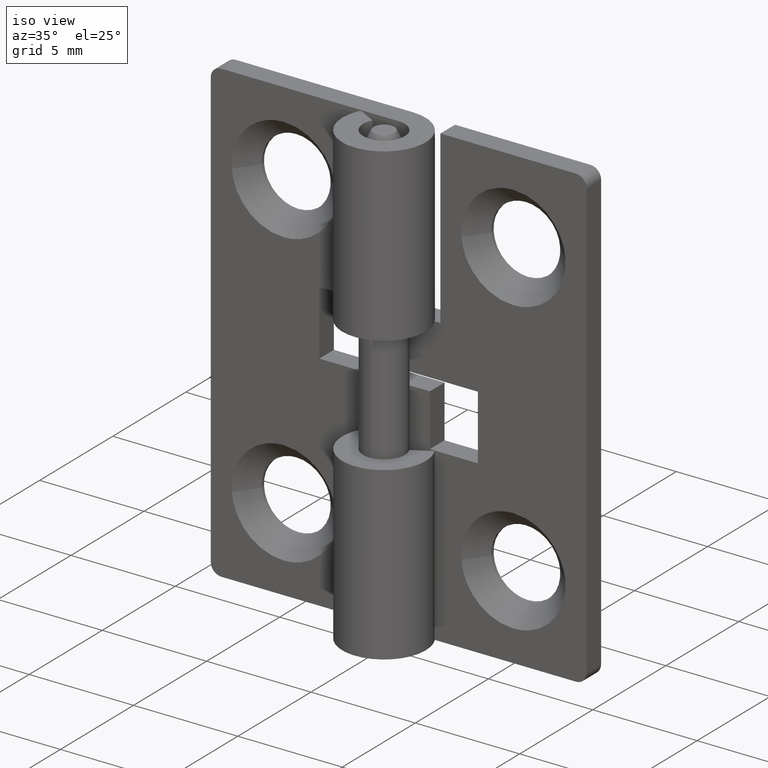
[diagram: clean part render]
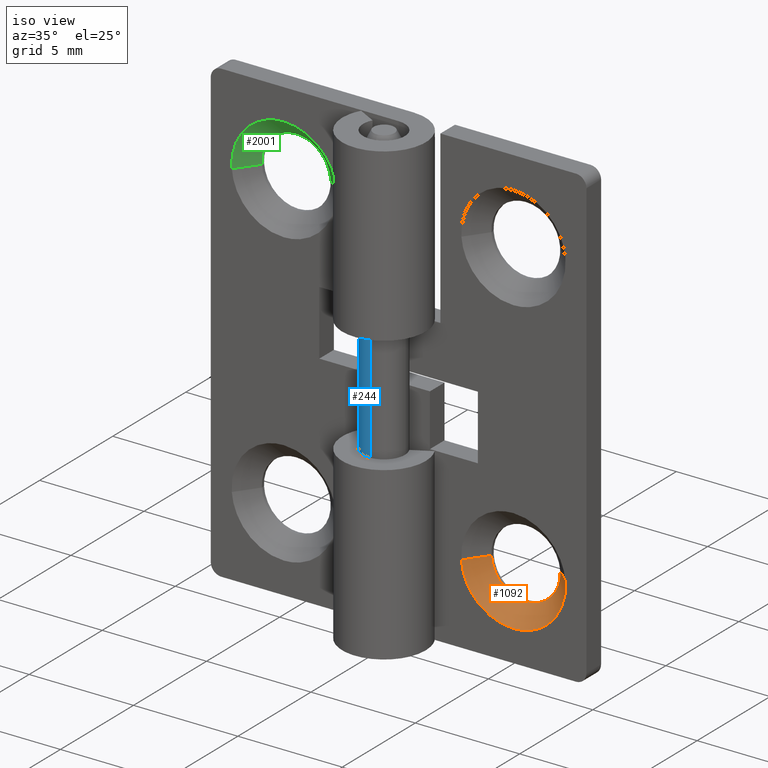
[diagram: same view with three faces highlighted in distinct colors, each labeled with its STEP entity id]
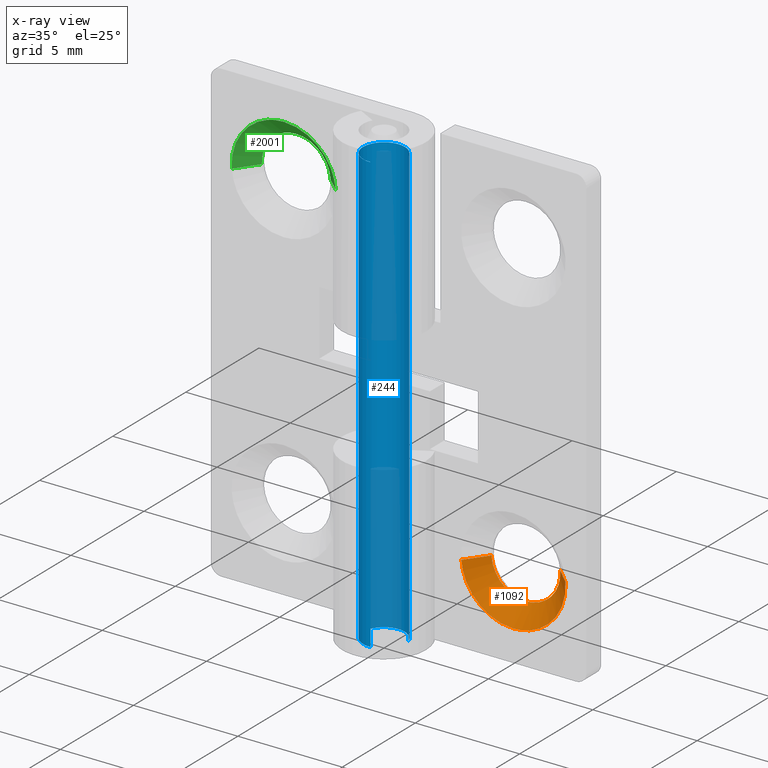
[diagram: x-ray of the same camera — body ghosted, the three highlighted faces saturated]
A machine part, iso view with three faces highlighted in distinct colors.
The next image is the same camera in x-ray (body ghosted, the three faces saturated) — at least one of them is partly hidden behind the body in this view.
Their STEP definitions:

[orange] entity #1092 — the highlighted face is a freeform B-spline surface patch.
#783=CARTESIAN_POINT('',(7.139224169167774,1.850000000000000,3.811733903168356));
#784=VERTEX_POINT('',#783);
#785=CARTESIAN_POINT('',(5.500000000000000,1.850000000000000,2.350000000000000));
#786=VERTEX_POINT('',#785);
#787=CARTESIAN_POINT('',(7.139224169167774,1.850000000000000,3.811733903168357));
#788=CARTESIAN_POINT('',(6.971342959418053,1.850000000000000,2.349999999999999));
#789=CARTESIAN_POINT('',(5.500000000000000,1.850000000000000,2.350000000000000));
#797=(BOUNDED_CURVE()B_SPLINE_CURVE(2,(#787,#788,#789),.UNSPECIFIED.,.F.,.U.)B_SPLINE_CURVE_WITH_KNOTS((3,3),(0.269767755878684,0.500000000000000),.UNSPECIFIED.)CURVE()GEOMETRIC_REPRESENTATION_ITEM()RATIONAL_B_SPLINE_CURVE((0.957343736456571,0.730266147778653,1.0))REPRESENTATION_ITEM(''));
#798=EDGE_CURVE('',#784,#786,#797,.T.);
#837=CARTESIAN_POINT('',(3.853077582606726,1.850000000000000,3.899269909721588));
#838=VERTEX_POINT('',#837);
#844=CARTESIAN_POINT('',(5.500000000000000,1.850000000000000,2.350000000000000));
#845=CARTESIAN_POINT('',(3.947834989648942,1.850000000000000,2.350000000000000));
#846=CARTESIAN_POINT('',(3.853077582606727,1.850000000000000,3.899269909721587));
#854=(BOUNDED_CURVE()B_SPLINE_CURVE(2,(#844,#845,#846),.UNSPECIFIED.,.F.,.U.)B_SPLINE_CURVE_WITH_KNOTS((3,3),(0.500000000000000,0.739332962237160),.UNSPECIFIED.)CURVE()GEOMETRIC_REPRESENTATION_ITEM()RATIONAL_B_SPLINE_CURVE((1.0,0.719603993288800,0.976072041662896))REPRESENTATION_ITEM(''));
#855=EDGE_CURVE('',#786,#838,#854,.T.);
#882=CARTESIAN_POINT('',(7.144913600666376,1.849999999983172,4.129457508080139));
#883=VERTEX_POINT('',#882);
#884=CARTESIAN_POINT('',(7.144913600666376,1.849999999983173,4.129457508080139));
#885=CARTESIAN_POINT('',(7.150000000000001,1.850000000000001,4.064828676691123));
#886=CARTESIAN_POINT('',(7.150000000000000,1.850000000000000,4.0));
#887=CARTESIAN_POINT('',(7.150000000000000,1.850000000000000,3.905558562198120));
#888=CARTESIAN_POINT('',(7.139224169167774,1.850000000000000,3.811733903168356));
#896=(BOUNDED_CURVE()B_SPLINE_CURVE(2,(#884,#885,#886,#887,#888),.UNSPECIFIED.,.F.,.U.)B_SPLINE_CURVE_WITH_KNOTS((3,2,3),(0.236331300606114,0.250000000000000,0.269767755878684),.UNSPECIFIED.)CURVE()GEOMETRIC_REPRESENTATION_ITEM()RATIONAL_B_SPLINE_CURVE((0.969723356116193,0.983986122550125,1.0,0.976840633407895,0.957343736456571))REPRESENTATION_ITEM(''));
#897=EDGE_CURVE('',#883,#784,#896,.T.);
#985=CARTESIAN_POINT('',(7.992293334333542,0.999999999998199,4.196147739333381));
#986=VERTEX_POINT('',#985);
#987=CARTESIAN_POINT('',(7.144913600666376,1.849999999983172,4.129457508080139));
#988=CARTESIAN_POINT('',(7.992293334333542,0.999999999998199,4.196147739333381));
#989=QUASI_UNIFORM_CURVE('',1,(#987,#988),.UNSPECIFIED.,.F.,.U.);
#990=EDGE_CURVE('',#883,#986,#989,.T.);
#1007=CARTESIAN_POINT('',(3.007706665666458,0.999999999998199,3.803852260666618));
#1008=VERTEX_POINT('',#1007);
#1024=CARTESIAN_POINT('',(3.853077582606726,1.850000000000000,3.899269909721588));
#1025=CARTESIAN_POINT('',(3.007706665666458,0.999999999998199,3.803852260666618));
#1026=QUASI_UNIFORM_CURVE('',1,(#1024,#1025),.UNSPECIFIED.,.F.,.U.);
#1027=EDGE_CURVE('',#838,#1008,#1026,.T.);
#1033=CARTESIAN_POINT('',(3.872274542677407,1.871250000000001,3.922988189191138));
#1034=CARTESIAN_POINT('',(3.874259691543567,1.871250000000000,3.897764481265867));
#1035=CARTESIAN_POINT('',(4.004061144848891,1.871250000000000,2.248480640515434));
#1036=CARTESIAN_POINT('',(5.627790252166729,1.871250000000000,2.376270892682163));
#1037=CARTESIAN_POINT('',(7.251519359484565,1.871250000000000,2.504061144848892));
#1038=CARTESIAN_POINT('',(7.122822589265298,1.871250000000001,4.139308656139376));
#1039=CARTESIAN_POINT('',(7.121921382933817,1.871250000000000,4.150759568296660));
#1040=CARTESIAN_POINT('',(2.979805041643115,0.978218750000000,3.880763198448911));
#1041=CARTESIAN_POINT('',(2.982878632549728,0.978218750000000,3.841709523114193));
#1042=CARTESIAN_POINT('',(3.183849236490243,0.978218750000000,1.288135883493371));
#1043=CARTESIAN_POINT('',(5.697856676498436,0.978218750000000,1.485992559991807));
#1044=CARTESIAN_POINT('',(8.211864116506629,0.978218750000000,1.683849236490242));
#1045=CARTESIAN_POINT('',(8.012603884995034,0.978218750000000,4.215690533854165));
#1046=CARTESIAN_POINT('',(8.011208554079234,0.978218750000000,4.233419894144964));
#1054=(BOUNDED_SURFACE()B_SPLINE_SURFACE(2,1,((#1033,#1040),(#1034,#1041),(#1035,#1042),(#1036,#1043),(#1037,#1044),(#1038,#1045),(#1039,#1046)),.UNSPECIFIED.,.F.,.F.,.U.)B_SPLINE_SURFACE_WITH_KNOTS((3,1,2,1,3),(2,2),(0.0,0.093606269098709,4.271830249451413,8.450054229804119,8.492094299894985),(0.0,1.0),.UNSPECIFIED.)GEOMETRIC_REPRESENTATION_ITEM()RATIONAL_B_SPLINE_SURFACE(((1.013123586282765,1.013123586282765),(1.006561793141383,1.006561793141383),(0.707106781186548,0.707106781186548),(1.0,1.0),(0.707106781186548,0.707106781186548),(1.002947006073862,1.002947006073862),(1.005894012147725,1.005894012147725)))REPRESENTATION_ITEM('')SURFACE());
#1055=ORIENTED_EDGE('',*,*,#897,.T.);
#1056=ORIENTED_EDGE('',*,*,#798,.T.);
#1057=ORIENTED_EDGE('',*,*,#855,.T.);
#1058=ORIENTED_EDGE('',*,*,#1027,.T.);
#1059=CARTESIAN_POINT('',(5.500000000000000,1.0,1.500000000000000));
#1060=VERTEX_POINT('',#1059);
#1061=CARTESIAN_POINT('',(5.500000000000000,1.0,1.500000000000000));
#1062=CARTESIAN_POINT('',(3.189023770879836,1.0,1.500000000000000));
#1063=CARTESIAN_POINT('',(3.007706665666458,0.999999999998199,3.803852260666619));
#1071=(BOUNDED_CURVE()B_SPLINE_CURVE(2,(#1061,#1062,#1063),.UNSPECIFIED.,.F.,.U.)B_SPLINE_CURVE_WITH_KNOTS((3,3),(0.500000000000000,0.736331300630892),.UNSPECIFIED.)CURVE()GEOMETRIC_REPRESENTATION_ITEM()RATIONAL_B_SPLINE_CURVE((1.0,0.723120658607393,0.969723356167903))REPRESENTATION_ITEM(''));
#1072=EDGE_CURVE('',#1060,#1008,#1071,.T.);
#1073=ORIENTED_EDGE('',*,*,#1072,.F.);
#1074=CARTESIAN_POINT('',(7.992293334333542,0.999999999998199,4.196147739333381));
#1075=CARTESIAN_POINT('',(8.0,1.0,4.098225267532865));
#1076=CARTESIAN_POINT('',(8.0,1.0,4.0));
#1077=CARTESIAN_POINT('',(8.0,1.0,1.500000000000000));
#1078=CARTESIAN_POINT('',(5.500000000000000,1.0,1.500000000000000));
#1086=(BOUNDED_CURVE()B_SPLINE_CURVE(2,(#1074,#1075,#1076,#1077,#1078),.UNSPECIFIED.,.F.,.U.)B_SPLINE_CURVE_WITH_KNOTS((3,2,3),(0.236331300630892,0.250000000000000,0.500000000000000),.UNSPECIFIED.)CURVE()GEOMETRIC_REPRESENTATION_ITEM()RATIONAL_B_SPLINE_CURVE((0.969723356167903,0.983986122579155,1.0,0.707106781186548,1.0))REPRESENTATION_ITEM(''));
#1087=EDGE_CURVE('',#986,#1060,#1086,.T.);
#1088=ORIENTED_EDGE('',*,*,#1087,.F.);
#1089=ORIENTED_EDGE('',*,*,#990,.F.);
#1090=EDGE_LOOP('',(#1055,#1056,#1057,#1058,#1073,#1088,#1089));
#1091=FACE_OUTER_BOUND('',#1090,.T.);
#1092=ADVANCED_FACE('',(#1091),#1054,.F.);

[blue] entity #244 — the highlighted face is a freeform B-spline surface patch.
#62=CARTESIAN_POINT('',(0.936143578776234,0.351617974392700,20.999991999999999));
#63=VERTEX_POINT('',#62);
#79=CARTESIAN_POINT('',(0.061048539597104,-0.998134798423732,20.999991999977400));
#80=VERTEX_POINT('',#79);
#94=CARTESIAN_POINT('',(0.061048539599110,-0.998134798417937,-5.551115E-017));
#95=VERTEX_POINT('',#94);
#96=CARTESIAN_POINT('',(0.061048539597104,-0.998134798423732,20.999991999977400));
#97=CARTESIAN_POINT('',(0.061048539599110,-0.998134798417937,-5.551115E-017));
#98=QUASI_UNIFORM_CURVE('',1,(#96,#97),.UNSPECIFIED.,.F.,.U.);
#99=EDGE_CURVE('',#80,#95,#98,.T.);
#116=CARTESIAN_POINT('',(0.936143722382897,0.351617592055527,-1.286293E-015));
#117=VERTEX_POINT('',#116);
#131=CARTESIAN_POINT('',(0.936143578776234,0.351617974392700,20.999991999999999));
#132=CARTESIAN_POINT('',(0.936143722382897,0.351617592055527,-1.286293E-015));
#133=QUASI_UNIFORM_CURVE('',1,(#131,#132),.UNSPECIFIED.,.F.,.U.);
#134=EDGE_CURVE('',#63,#117,#133,.T.);
#139=CARTESIAN_POINT('',(0.061048539534857,-0.998134798421867,21.524991799999999));
#140=CARTESIAN_POINT('',(-0.937086258887010,-1.059183337956724,21.524991799999999));
#141=CARTESIAN_POINT('',(-0.998134798421867,-0.061048539534857,21.524991799999999));
#142=CARTESIAN_POINT('',(-1.059183337956724,0.937086258887010,21.524991799999999));
#143=CARTESIAN_POINT('',(-0.061048539534857,0.998134798421867,21.524991799999999));
#144=CARTESIAN_POINT('',(0.676369581803065,1.043237222869342,21.524991800000009));
#145=CARTESIAN_POINT('',(0.936143578776657,0.351617974391572,21.524991800000002));
#146=CARTESIAN_POINT('',(0.061048539534857,-0.998134798421867,-0.538124794999998));
#147=CARTESIAN_POINT('',(-0.937086258887010,-1.059183337956724,-0.538124794999998));
#148=CARTESIAN_POINT('',(-0.998134798421867,-0.061048539534857,-0.538124794999998));
#149=CARTESIAN_POINT('',(-1.059183337956724,0.937086258887010,-0.538124794999998));
#150=CARTESIAN_POINT('',(-0.061048539534857,0.998134798421867,-0.538124794999998));
#151=CARTESIAN_POINT('',(0.676369581803065,1.043237222869342,-0.538124794999998));
#152=CARTESIAN_POINT('',(0.936143578776657,0.351617974391572,-0.538124794999998));
#160=(BOUNDED_SURFACE()B_SPLINE_SURFACE(2,1,((#139,#146),(#140,#147),(#141,#148),(#142,#149),(#143,#150),(#144,#151),(#145,#152)),.UNSPECIFIED.,.F.,.F.,.U.)B_SPLINE_SURFACE_WITH_KNOTS((3,2,2,3),(2,2),(0.0,1.570796326794897,3.141592653589793,4.398229715025710),(0.0,22.063116595000000),.UNSPECIFIED.)GEOMETRIC_REPRESENTATION_ITEM()RATIONAL_B_SPLINE_SURFACE(((1.0,1.0),(0.707106781186548,0.707106781186548),(1.0,1.0),(0.707106781186548,0.707106781186548),(1.0,1.0),(0.765685424949238,0.765685424949238),(0.906274169979695,0.906274169979695)))REPRESENTATION_ITEM('')SURFACE());
#161=CARTESIAN_POINT('',(-0.118034234777893,0.993009526360367,20.999991999978000));
#162=VERTEX_POINT('',#161);
#163=CARTESIAN_POINT('',(-0.118034234777893,0.993009526360367,20.999991999977997));
#164=CARTESIAN_POINT('',(-0.059224119773011,1.0,20.999991999999999));
#165=CARTESIAN_POINT('',(0.0,1.0,20.999991999999999));
#166=CARTESIAN_POINT('',(0.692609595692639,1.0,20.999992000000002));
#167=CARTESIAN_POINT('',(0.936143578776234,0.351617974392700,20.999991999999995));
#175=(BOUNDED_CURVE()B_SPLINE_CURVE(2,(#163,#164,#165,#166,#167),.UNSPECIFIED.,.F.,.U.)B_SPLINE_CURVE_WITH_KNOTS((3,2,3),(0.229562473474855,0.250000000000000,0.440284170898529),.UNSPECIFIED.)CURVE()GEOMETRIC_REPRESENTATION_ITEM()RATIONAL_B_SPLINE_CURVE((0.956026754107936,0.976055948285859,1.0,0.777068226785123,0.893499554635300))REPRESENTATION_ITEM(''));
#176=EDGE_CURVE('',#162,#63,#175,.T.);
#177=ORIENTED_EDGE('',*,*,#176,.T.);
#178=ORIENTED_EDGE('',*,*,#134,.T.);
#179=CARTESIAN_POINT('',(-1.0,0.0,0.0));
#180=VERTEX_POINT('',#179);
#181=CARTESIAN_POINT('',(-1.0,0.0,0.0));
#182=CARTESIAN_POINT('',(-1.0,1.0,0.0));
#183=CARTESIAN_POINT('',(0.0,1.0,0.0));
#184=CARTESIAN_POINT('',(0.692610200030990,1.0,0.0));
#185=CARTESIAN_POINT('',(0.936143722382897,0.351617592055527,-1.286293E-015));
#193=(BOUNDED_CURVE()B_SPLINE_CURVE(2,(#181,#182,#183,#184,#185),.UNSPECIFIED.,.F.,.U.)B_SPLINE_CURVE_WITH_KNOTS((3,2,3),(0.0,0.250000000000000,0.440284299917443),.UNSPECIFIED.)CURVE()GEOMETRIC_REPRESENTATION_ITEM()RATIONAL_B_SPLINE_CURVE((1.0,0.707106781186548,1.0,0.777068075630063,0.893499712523980))REPRESENTATION_ITEM(''));
#194=EDGE_CURVE('',#180,#117,#193,.T.);
#195=ORIENTED_EDGE('',*,*,#194,.F.);
#196=CARTESIAN_POINT('',(0.061048539599110,-0.998134798417937,-5.551115E-017));
#197=CARTESIAN_POINT('',(0.030552763363022,-1.0,0.0));
#198=CARTESIAN_POINT('',(0.0,-1.0,0.0));
#199=CARTESIAN_POINT('',(-1.0,-1.0,0.0));
#200=CARTESIAN_POINT('',(-1.0,0.0,0.0));
#208=(BOUNDED_CURVE()B_SPLINE_CURVE(2,(#196,#197,#198,#199,#200),.UNSPECIFIED.,.F.,.U.)B_SPLINE_CURVE_WITH_KNOTS((3,2,3),(0.739332962219754,0.750000000000000,1.0),.UNSPECIFIED.)CURVE()GEOMETRIC_REPRESENTATION_ITEM()RATIONAL_B_SPLINE_CURVE((0.976072041625591,0.987502787877356,1.0,0.707106781186548,1.0))REPRESENTATION_ITEM(''));
#209=EDGE_CURVE('',#95,#180,#208,.T.);
#210=ORIENTED_EDGE('',*,*,#209,.F.);
#211=ORIENTED_EDGE('',*,*,#99,.F.);
#212=CARTESIAN_POINT('',(-1.0,0.0,20.999991999999999));
#213=VERTEX_POINT('',#212);
#214=CARTESIAN_POINT('',(0.061048539597104,-0.998134798423732,20.999991999977404));
#215=CARTESIAN_POINT('',(0.030552763422738,-1.0,20.999991999999999));
#216=CARTESIAN_POINT('',(0.0,-1.0,20.999991999999999));
#217=CARTESIAN_POINT('',(-1.0,-1.0,20.999991999999999));
#218=CARTESIAN_POINT('',(-1.0,0.0,20.999991999999999));
#226=(BOUNDED_CURVE()B_SPLINE_CURVE(2,(#214,#215,#216,#217,#218),.UNSPECIFIED.,.F.,.U.)B_SPLINE_CURVE_WITH_KNOTS((3,2,3),(0.739332962199165,0.750000000000000,1.0),.UNSPECIFIED.)CURVE()GEOMETRIC_REPRESENTATION_ITEM()RATIONAL_B_SPLINE_CURVE((0.976072041581467,0.987502787853235,1.0,0.707106781186548,1.0))REPRESENTATION_ITEM(''));
#227=EDGE_CURVE('',#80,#213,#226,.T.);
#228=ORIENTED_EDGE('',*,*,#227,.T.);
#229=CARTESIAN_POINT('',(-1.0,0.0,20.999991999999999));
#230=CARTESIAN_POINT('',(-1.0,0.888174525735494,20.999992000000002));
#231=CARTESIAN_POINT('',(-0.118034234777893,0.993009526360367,20.999991999978004));
#239=(BOUNDED_CURVE()B_SPLINE_CURVE(2,(#229,#230,#231),.UNSPECIFIED.,.F.,.U.)B_SPLINE_CURVE_WITH_KNOTS((3,3),(0.0,0.229562473474855),.UNSPECIFIED.)CURVE()GEOMETRIC_REPRESENTATION_ITEM()RATIONAL_B_SPLINE_CURVE((1.0,0.731050832900688,0.956026754107936))REPRESENTATION_ITEM(''));
#240=EDGE_CURVE('',#213,#162,#239,.T.);
#241=ORIENTED_EDGE('',*,*,#240,.T.);
#242=EDGE_LOOP('',(#177,#178,#195,#210,#211,#228,#241));
#243=FACE_OUTER_BOUND('',#242,.T.);
#244=ADVANCED_FACE('',(#243),#160,.T.);

[green] entity #2001 — the highlighted face is a freeform B-spline surface patch.
#1806=CARTESIAN_POINT('',(-7.146922417393274,1.850000000000000,17.899269909721589));
#1807=VERTEX_POINT('',#1806);
#1851=CARTESIAN_POINT('',(-3.855086399333626,1.849999999983171,18.129457508080140));
#1852=VERTEX_POINT('',#1851);
#1868=CARTESIAN_POINT('',(-5.500000000000000,1.850000000000000,19.649999999999999));
#1869=VERTEX_POINT('',#1868);
#1870=CARTESIAN_POINT('',(-5.500000000000000,1.850000000000000,19.649999999999999));
#1871=CARTESIAN_POINT('',(-3.974755689001835,1.850000000000000,19.649999999999991));
#1872=CARTESIAN_POINT('',(-3.855086399333626,1.849999999983171,18.129457508080137));
#1880=(BOUNDED_CURVE()B_SPLINE_CURVE(2,(#1870,#1871,#1872),.UNSPECIFIED.,.F.,.U.)B_SPLINE_CURVE_WITH_KNOTS((3,3),(0.0,0.236331300606114),.UNSPECIFIED.)CURVE()GEOMETRIC_REPRESENTATION_ITEM()RATIONAL_B_SPLINE_CURVE((1.0,0.723120658636423,0.969723356116193))REPRESENTATION_ITEM(''));
#1881=EDGE_CURVE('',#1869,#1852,#1880,.T.);
#1883=CARTESIAN_POINT('',(-7.146922417393275,1.850000000000000,17.899269909721585));
#1884=CARTESIAN_POINT('',(-7.150000000000000,1.850000000000000,17.949587940534318));
#1885=CARTESIAN_POINT('',(-7.150000000000000,1.850000000000000,18.0));
#1886=CARTESIAN_POINT('',(-7.150000000000002,1.850000000000000,19.649999999999999));
#1887=CARTESIAN_POINT('',(-5.500000000000000,1.850000000000000,19.649999999999999));
#1895=(BOUNDED_CURVE()B_SPLINE_CURVE(2,(#1883,#1884,#1885,#1886,#1887),.UNSPECIFIED.,.F.,.U.)B_SPLINE_CURVE_WITH_KNOTS((3,2,3),(0.739332962237160,0.750000000000000,1.0),.UNSPECIFIED.)CURVE()GEOMETRIC_REPRESENTATION_ITEM()RATIONAL_B_SPLINE_CURVE((0.976072041662896,0.987502787897748,1.0,0.707106781186548,1.0))REPRESENTATION_ITEM(''));
#1896=EDGE_CURVE('',#1807,#1869,#1895,.T.);
#1935=CARTESIAN_POINT('',(-3.876270892682169,1.871250000000000,18.127790252166729));
#1936=CARTESIAN_POINT('',(-4.004061144848898,1.871250000000000,19.751519359484565));
#1937=CARTESIAN_POINT('',(-5.627790252166729,1.871250000000000,19.623729107317828));
#1938=CARTESIAN_POINT('',(-7.251519359484559,1.871250000000000,19.495938855151099));
#1939=CARTESIAN_POINT('',(-7.123729107317831,1.871250000000000,17.872209747833271));
#1940=CARTESIAN_POINT('',(-2.985992559991807,0.978218750000000,18.197856676498439));
#1941=CARTESIAN_POINT('',(-3.183849236490243,0.978218750000000,20.711864116506629));
#1942=CARTESIAN_POINT('',(-5.697856676498436,0.978218750000000,20.514007440008189));
#1943=CARTESIAN_POINT('',(-8.211864116506629,0.978218750000000,20.316150763509764));
#1944=CARTESIAN_POINT('',(-8.014007440008193,0.978218750000000,17.802143323501561));
#1952=(BOUNDED_SURFACE()B_SPLINE_SURFACE(2,1,((#1935,#1940),(#1936,#1941),(#1937,#1942),(#1938,#1943),(#1939,#1944)),.UNSPECIFIED.,.F.,.F.,.U.)B_SPLINE_SURFACE_WITH_KNOTS((3,2,3),(2,2),(0.0,4.178223980352708,8.356447960705415),(0.0,1.0),.UNSPECIFIED.)GEOMETRIC_REPRESENTATION_ITEM()RATIONAL_B_SPLINE_SURFACE(((1.0,1.0),(0.707106781186548,0.707106781186548),(1.0,1.0),(0.707106781186548,0.707106781186548),(1.0,1.0)))REPRESENTATION_ITEM('')SURFACE());
#1953=ORIENTED_EDGE('',*,*,#1881,.T.);
#1954=CARTESIAN_POINT('',(-3.007706665666458,0.999999999998199,18.196147739333380));
#1955=VERTEX_POINT('',#1954);
#1956=CARTESIAN_POINT('',(-3.855086399333626,1.849999999983171,18.129457508080140));
#1957=CARTESIAN_POINT('',(-3.007706665666458,0.999999999998199,18.196147739333380));
#1958=QUASI_UNIFORM_CURVE('',1,(#1956,#1957),.UNSPECIFIED.,.F.,.U.);
#1959=EDGE_CURVE('',#1852,#1955,#1958,.T.);
#1960=ORIENTED_EDGE('',*,*,#1959,.T.);
#1961=CARTESIAN_POINT('',(-5.500000000000000,1.0,20.500000000000000));
#1962=VERTEX_POINT('',#1961);
#1963=CARTESIAN_POINT('',(-5.500000000000000,1.0,20.500000000000000));
#1964=CARTESIAN_POINT('',(-3.189023770879833,1.0,20.500000000000000));
#1965=CARTESIAN_POINT('',(-3.007706665666458,0.999999999998199,18.196147739333384));
#1973=(BOUNDED_CURVE()B_SPLINE_CURVE(2,(#1963,#1964,#1965),.UNSPECIFIED.,.F.,.U.)B_SPLINE_CURVE_WITH_KNOTS((3,3),(0.0,0.236331300630892),.UNSPECIFIED.)CURVE()GEOMETRIC_REPRESENTATION_ITEM()RATIONAL_B_SPLINE_CURVE((1.0,0.723120658607393,0.969723356167903))REPRESENTATION_ITEM(''));
#1974=EDGE_CURVE('',#1962,#1955,#1973,.T.);
#1975=ORIENTED_EDGE('',*,*,#1974,.F.);
#1976=CARTESIAN_POINT('',(-7.992293334333542,0.999999999998199,17.803852260666620));
#1977=VERTEX_POINT('',#1976);
#1978=CARTESIAN_POINT('',(-7.992293334333542,0.999999999998199,17.803852260666616));
#1979=CARTESIAN_POINT('',(-8.0,1.0,17.901774732467135));
#1980=CARTESIAN_POINT('',(-8.0,1.0,18.0));
#1981=CARTESIAN_POINT('',(-8.0,1.0,20.499999999999993));
#1982=CARTESIAN_POINT('',(-5.500000000000000,1.0,20.500000000000000));
#1990=(BOUNDED_CURVE()B_SPLINE_CURVE(2,(#1978,#1979,#1980,#1981,#1982),.UNSPECIFIED.,.F.,.U.)B_SPLINE_CURVE_WITH_KNOTS((3,2,3),(0.736331300630892,0.750000000000000,1.0),.UNSPECIFIED.)CURVE()GEOMETRIC_REPRESENTATION_ITEM()RATIONAL_B_SPLINE_CURVE((0.969723356167904,0.983986122579155,1.0,0.707106781186548,1.0))REPRESENTATION_ITEM(''));
#1991=EDGE_CURVE('',#1977,#1962,#1990,.T.);
#1992=ORIENTED_EDGE('',*,*,#1991,.F.);
#1993=CARTESIAN_POINT('',(-7.146922417393274,1.850000000000000,17.899269909721589));
#1994=CARTESIAN_POINT('',(-7.992293334333542,0.999999999998199,17.803852260666620));
#1995=QUASI_UNIFORM_CURVE('',1,(#1993,#1994),.UNSPECIFIED.,.F.,.U.);
#1996=EDGE_CURVE('',#1807,#1977,#1995,.T.);
#1997=ORIENTED_EDGE('',*,*,#1996,.F.);
#1998=ORIENTED_EDGE('',*,*,#1896,.T.);
#1999=EDGE_LOOP('',(#1953,#1960,#1975,#1992,#1997,#1998));
#2000=FACE_OUTER_BOUND('',#1999,.T.);
#2001=ADVANCED_FACE('',(#2000),#1952,.F.);